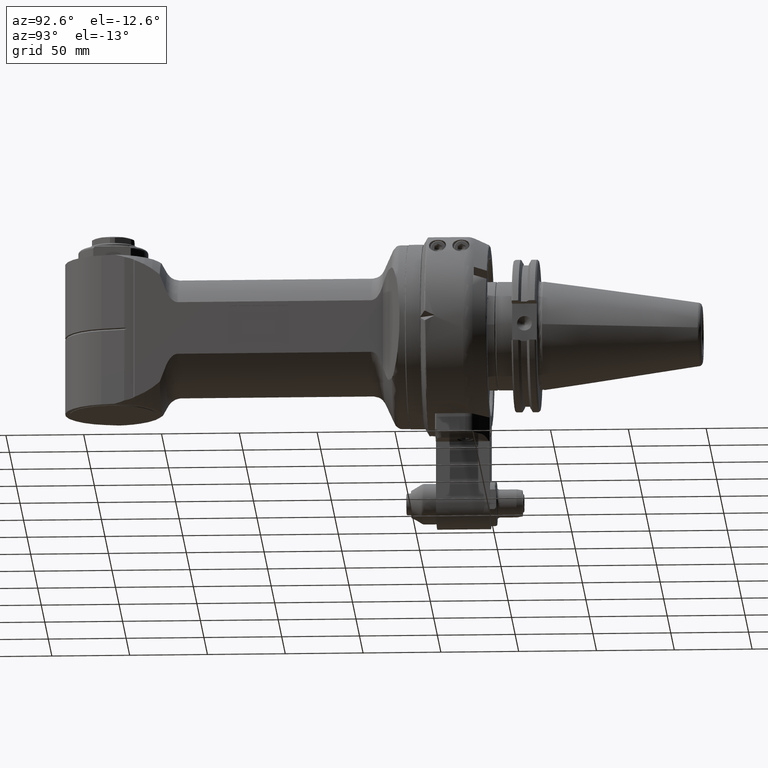
[diagram: clean part render]
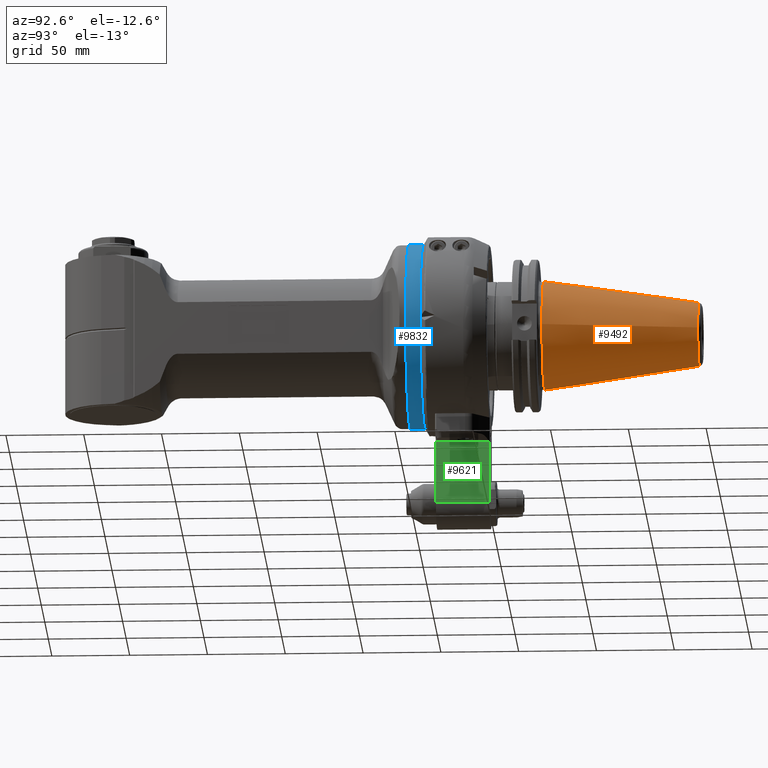
[diagram: same view with three faces highlighted in distinct colors, each labeled with its STEP entity id]
A machine part, auxiliary view with three faces highlighted in distinct colors.
Their STEP definitions:

[orange] entity #9492 — the highlighted conical surface has half-angle 8.297 deg.
#57=CONICAL_SURFACE('',#10228,27.67265681028,0.144812411498922);
#705=CIRCLE('',#10226,34.925);
#706=CIRCLE('',#10227,34.925);
#707=CIRCLE('',#10229,20.42031362057);
#708=CIRCLE('',#10230,20.42031362057);
#1238=FACE_OUTER_BOUND('',#1838,.T.);
#1838=EDGE_LOOP('',(#6751,#6752,#6753,#6754,#6755,#6756));
#2697=LINE('',#15011,#3310);
#3310=VECTOR('',#11663,27.67265681028);
#3989=VERTEX_POINT('',#15004);
#3990=VERTEX_POINT('',#15005);
#3991=VERTEX_POINT('',#15010);
#3992=VERTEX_POINT('',#15012);
#5039=EDGE_CURVE('',#3989,#3990,#705,.T.);
#5041=EDGE_CURVE('',#3990,#3989,#706,.T.);
#5042=EDGE_CURVE('',#3989,#3991,#2697,.T.);
#5043=EDGE_CURVE('',#3992,#3991,#707,.T.);
#5044=EDGE_CURVE('',#3991,#3992,#708,.T.);
#6751=ORIENTED_EDGE('',*,*,#5039,.F.);
#6752=ORIENTED_EDGE('',*,*,#5042,.T.);
#6753=ORIENTED_EDGE('',*,*,#5043,.F.);
#6754=ORIENTED_EDGE('',*,*,#5044,.F.);
#6755=ORIENTED_EDGE('',*,*,#5042,.F.);
#6756=ORIENTED_EDGE('',*,*,#5041,.F.);
#9492=ADVANCED_FACE('',(#1238),#57,.T.);
#10226=AXIS2_PLACEMENT_3D('',#15006,#11656,#11657);
#10227=AXIS2_PLACEMENT_3D('',#15008,#11659,#11660);
#10228=AXIS2_PLACEMENT_3D('',#15009,#11661,#11662);
#10229=AXIS2_PLACEMENT_3D('',#15013,#11664,#11665);
#10230=AXIS2_PLACEMENT_3D('',#15014,#11666,#11667);
#11656=DIRECTION('center_axis',(0.,-1.,0.));
#11657=DIRECTION('ref_axis',(-1.,0.,0.));
#11659=DIRECTION('center_axis',(0.,-1.,0.));
#11660=DIRECTION('ref_axis',(-1.,0.,0.));
#11661=DIRECTION('center_axis',(0.,-1.,0.));
#11662=DIRECTION('ref_axis',(-1.,0.,0.));
#11663=DIRECTION('',(-0.144306807239621,0.98953299358046,-1.76724869581176E-17));
#11664=DIRECTION('center_axis',(0.,1.,0.));
#11665=DIRECTION('ref_axis',(-1.,0.,0.));
#11666=DIRECTION('center_axis',(0.,1.,0.));
#11667=DIRECTION('ref_axis',(-1.,0.,0.));
#15004=CARTESIAN_POINT('',(34.925,76.9999997692299,0.));
#15005=CARTESIAN_POINT('',(-34.9250000000012,76.9999997692296,4.27707894602227E-15));
#15006=CARTESIAN_POINT('Origin',(0.,76.9999997692299,0.));
#15008=CARTESIAN_POINT('Origin',(0.,76.9999997692299,0.));
#15009=CARTESIAN_POINT('Origin',(0.,126.73038327828,0.));
#15010=CARTESIAN_POINT('',(20.4203136205638,176.460766787329,2.50076717130085E-15));
#15011=CARTESIAN_POINT('',(27.67265681028,126.73038327828,3.38892305866126E-15));
#15012=CARTESIAN_POINT('',(2.50076717130162E-15,176.46076678733,-20.42031362057));
#15013=CARTESIAN_POINT('Origin',(0.,176.46076678733,0.));
#15014=CARTESIAN_POINT('Origin',(0.,176.46076678733,0.));

[blue] entity #9832 — the highlighted cylindrical surface (bore or boss wall) has radius 59.3 mm, axis along (-0, 1, 0).
#435=CYLINDRICAL_SURFACE('',#10872,59.3);
#1002=CIRCLE('',#10871,59.3);
#1003=CIRCLE('',#10873,59.3);
#1578=FACE_OUTER_BOUND('',#2217,.T.);
#2217=EDGE_LOOP('',(#8506,#8507,#8508,#8509));
#3059=LINE('',#31560,#3672);
#3672=VECTOR('',#13315,59.3);
#4575=VERTEX_POINT('',#31555);
#4576=VERTEX_POINT('',#31558);
#5926=EDGE_CURVE('',#4575,#4575,#1002,.T.);
#5927=EDGE_CURVE('',#4576,#4576,#1003,.T.);
#5928=EDGE_CURVE('',#4576,#4575,#3059,.T.);
#8506=ORIENTED_EDGE('',*,*,#5927,.T.);
#8507=ORIENTED_EDGE('',*,*,#5928,.T.);
#8508=ORIENTED_EDGE('',*,*,#5926,.F.);
#8509=ORIENTED_EDGE('',*,*,#5928,.F.);
#9832=ADVANCED_FACE('',(#1578),#435,.T.);
#10871=AXIS2_PLACEMENT_3D('',#31556,#13309,#13310);
#10872=AXIS2_PLACEMENT_3D('',#31557,#13311,#13312);
#10873=AXIS2_PLACEMENT_3D('',#31559,#13313,#13314);
#13309=DIRECTION('center_axis',(1.,0.,0.));
#13310=DIRECTION('ref_axis',(0.,1.,0.));
#13311=DIRECTION('center_axis',(-1.,0.,0.));
#13312=DIRECTION('ref_axis',(0.,-1.,0.));
#13313=DIRECTION('center_axis',(1.,0.,0.));
#13314=DIRECTION('ref_axis',(0.,1.,0.));
#13315=DIRECTION('',(1.,0.,0.));
#31555=CARTESIAN_POINT('',(87.563097,59.3,-7.2621555189438E-15));
#31556=CARTESIAN_POINT('Origin',(87.563097,0.,0.));
#31557=CARTESIAN_POINT('Origin',(557.2946692282,0.,0.));
#31558=CARTESIAN_POINT('',(78.263097,59.3,-7.2621555189438E-15));
#31559=CARTESIAN_POINT('Origin',(78.263097,0.,0.));
#31560=CARTESIAN_POINT('',(557.2946692282,59.3,-7.2621555189438E-15));

[green] entity #9621 — the highlighted planar face has unit normal (-1, 0, 0).
#273=B_SPLINE_CURVE_WITH_KNOTS('',3,(#16079,#16080,#16081,#16082,#16083,
#16084),.UNSPECIFIED.,.F.,.F.,(4,1,1,4),(0.,0.3333333333333,0.6666666666667,
1.),.UNSPECIFIED.);
#1367=FACE_OUTER_BOUND('',#1980,.T.);
#1980=EDGE_LOOP('',(#7467,#7468,#7469,#7470,#7471,#7472,#7473));
#2480=(
BOUNDED_CURVE()
B_SPLINE_CURVE(2,(#16076,#16077,#16078),.UNSPECIFIED.,.F.,.F.)
B_SPLINE_CURVE_WITH_KNOTS((3,3),(-2.7892370305413,-2.78034042692888),
 .UNSPECIFIED.)
CURVE()
GEOMETRIC_REPRESENTATION_ITEM()
RATIONAL_B_SPLINE_CURVE((1.50437710937611,1.50482378911169,1.50526248800471))
REPRESENTATION_ITEM('')
);
#2832=LINE('',#15904,#3445);
#2835=LINE('',#15910,#3448);
#2858=LINE('',#15997,#3471);
#2874=LINE('',#16073,#3487);
#2875=LINE('',#16074,#3488);
#3445=VECTOR('',#12214,1.012967937164);
#3448=VECTOR('',#12217,38.95873811633);
#3471=VECTOR('',#12306,34.5);
#3487=VECTOR('',#12360,40.00034668789);
#3488=VECTOR('',#12361,34.5);
#4200=VERTEX_POINT('',#15901);
#4201=VERTEX_POINT('',#15903);
#4203=VERTEX_POINT('',#15907);
#4204=VERTEX_POINT('',#15909);
#4235=VERTEX_POINT('',#15995);
#4255=VERTEX_POINT('',#16072);
#4256=VERTEX_POINT('',#16075);
#5347=EDGE_CURVE('',#4201,#4200,#2832,.T.);
#5350=EDGE_CURVE('',#4204,#4203,#2835,.T.);
#5393=EDGE_CURVE('',#4200,#4235,#2858,.T.);
#5422=EDGE_CURVE('',#4235,#4255,#2874,.T.);
#5423=EDGE_CURVE('',#4204,#4255,#2875,.T.);
#5424=EDGE_CURVE('',#4256,#4203,#2480,.T.);
#5425=EDGE_CURVE('',#4201,#4256,#273,.T.);
#7467=ORIENTED_EDGE('',*,*,#5393,.T.);
#7468=ORIENTED_EDGE('',*,*,#5422,.T.);
#7469=ORIENTED_EDGE('',*,*,#5423,.F.);
#7470=ORIENTED_EDGE('',*,*,#5350,.T.);
#7471=ORIENTED_EDGE('',*,*,#5424,.F.);
#7472=ORIENTED_EDGE('',*,*,#5425,.F.);
#7473=ORIENTED_EDGE('',*,*,#5347,.T.);
#9269=PLANE('',#10488);
#9621=ADVANCED_FACE('',(#1367),#9269,.F.);
#10488=AXIS2_PLACEMENT_3D('',#16071,#12358,#12359);
#12214=DIRECTION('',(0.,0.,1.));
#12217=DIRECTION('',(0.,0.,1.));
#12306=DIRECTION('',(0.,-1.,0.));
#12358=DIRECTION('center_axis',(-1.,0.,0.));
#12359=DIRECTION('ref_axis',(0.,-1.,0.));
#12360=DIRECTION('',(0.,0.,-1.));
#12361=DIRECTION('',(0.,-1.,0.));
#15901=CARTESIAN_POINT('',(15.,42.499999769231,-72.25));
#15903=CARTESIAN_POINT('',(15.,42.499999769231,-73.26296793716));
#15904=CARTESIAN_POINT('',(15.,42.499999769231,-73.26296793716));
#15907=CARTESIAN_POINT('',(15.,42.499999769231,-73.29160857156));
#15909=CARTESIAN_POINT('',(15.,42.499999769231,-112.25034668789));
#15910=CARTESIAN_POINT('',(15.,42.499999769231,-112.25034668789));
#15995=CARTESIAN_POINT('',(15.,7.999999769231,-72.25));
#15997=CARTESIAN_POINT('',(15.,42.499999769231,-72.25));
#16071=CARTESIAN_POINT('Origin',(15.,55.299999769231,-82.80034428789));
#16072=CARTESIAN_POINT('',(15.,7.999999769231,-112.25034668789));
#16073=CARTESIAN_POINT('',(15.,7.999999769231,-72.25));
#16074=CARTESIAN_POINT('',(15.,42.499999769231,-112.25034668789));
#16075=CARTESIAN_POINT('',(15.,42.439207839851,-73.28923048454));
#16076=CARTESIAN_POINT('Ctrl Pts',(15.,42.4392078398543,-73.2892304845414));
#16077=CARTESIAN_POINT('Ctrl Pts',(15.,42.4696214057443,-73.2904305959068));
#16078=CARTESIAN_POINT('Ctrl Pts',(15.,42.4999997692348,-73.2916085715602));
#16079=CARTESIAN_POINT('Ctrl Pts',(15.,42.499999769231,-73.26296793716));
#16080=CARTESIAN_POINT('Ctrl Pts',(15.,42.493256047631,-73.26585582738));
#16081=CARTESIAN_POINT('Ctrl Pts',(15.,42.479761300011,-73.27165169167));
#16082=CARTESIAN_POINT('Ctrl Pts',(15.,42.459497295561,-73.28040583332));
#16083=CARTESIAN_POINT('Ctrl Pts',(15.,42.445973412801,-73.28628221019));
#16084=CARTESIAN_POINT('Ctrl Pts',(15.,42.439207839851,-73.28923048454));